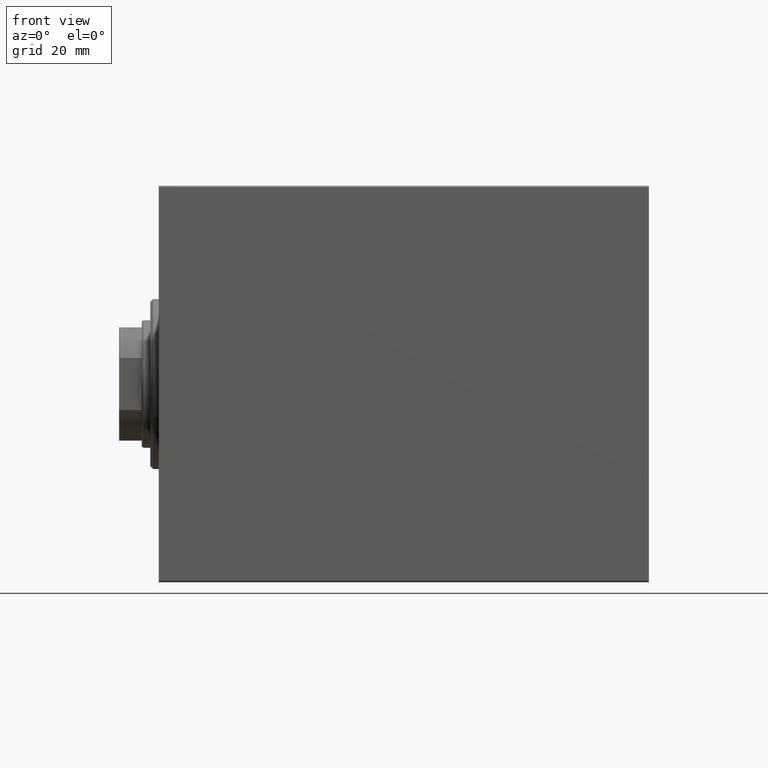
[diagram: clean part render]
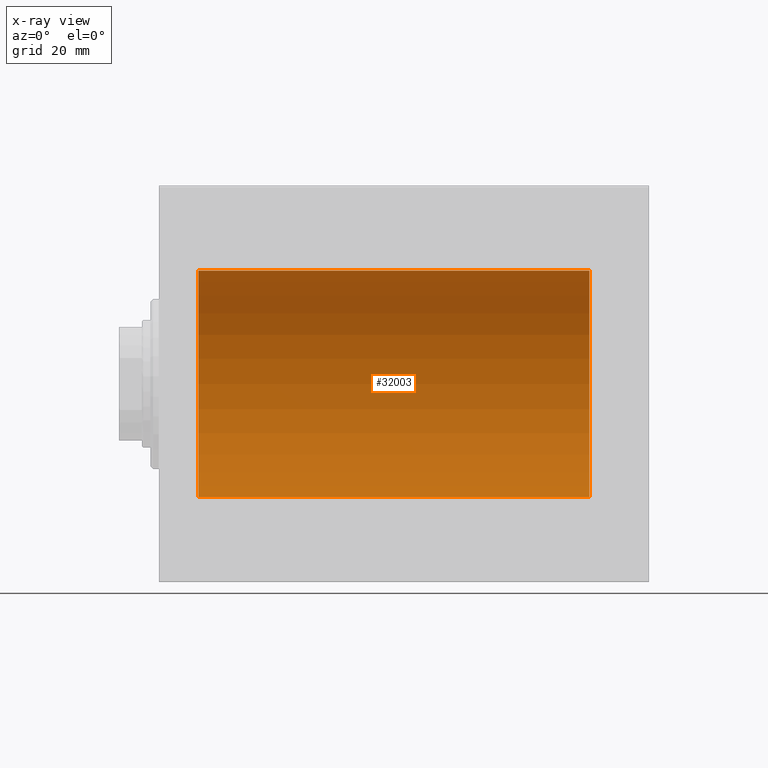
[diagram: x-ray — body ghosted, one internal face saturated and labeled with its STEP entity id]
A machine part, front view, then the same camera in x-ray: the body is ghosted and one INTERNAL B-rep face — a face not visible from any outside direction — is saturated and labeled: STEP entity #32003.
In plain terms, the highlighted cylindrical surface (partial cylindrical patch) has radius 40 mm, axis along (-1, -0, -0).
Its self-contained STEP definition (entity closure, byte-faithful):
#1011 = CARTESIAN_POINT ( 'NONE',  ( 148.5042935686005592, 2.602941461497646713, -39.91536715259250911 ) ) ;
#1141 = B_SPLINE_CURVE_WITH_KNOTS ( 'NONE', 3,
 ( #21067, #7482, #8143, #24404, #38185, #21723, #21504, #34628, #7711, #27752, #17745, #4361, #35286, #18173, #27967, #18396, #31299, #41517, #17527, #41736, #38402, #17957, #1011, #14620, #11285, #31733, #41954, #24843, #25285, #35067, #31961, #4580, #28405, #25064 ),
 .UNSPECIFIED., .F., .F.,
 ( 4, 2, 2, 2, 2, 2, 2, 2, 2, 2, 2, 2, 2, 2, 2, 2, 4 ),
 ( 2.203917256251973750E-18, 0.0005864162728940708162, 0.001172832545788139464, 0.001759248818682208112, 0.002345665091576277193, 0.002932081364470346275, 0.003518497637364414923, 0.004104913910258484004, 0.004691330183152552652, 0.005277746456046621300, 0.005864162728940689948, 0.006450579001834758595, 0.007036995274728826376, 0.007623411547622895024, 0.008209827820516962804, 0.008796244093411032319, 0.009382660366305101834 ),
 .UNSPECIFIED. ) ;
#1346 = DIRECTION ( 'NONE',  ( -1.000000000000000000, -0.000000000000000000, -0.000000000000000000 ) ) ;
#2346 = DIRECTION ( 'NONE',  ( -1.000000000000000000, -0.000000000000000000, -0.000000000000000000 ) ) ;
#2533 = ORIENTED_EDGE ( 'NONE', *, *, #23059, .F. ) ;
#2819 = CARTESIAN_POINT ( 'NONE',  ( 34.16846266449255154, 2.384195078505205512, -39.92903310064217948 ) ) ;
#4361 = CARTESIAN_POINT ( 'NONE',  ( 145.4964356991661134, 2.603499486649421879, -39.91533365697404889 ) ) ;
#4580 = CARTESIAN_POINT ( 'NONE',  ( 149.9803741230966807, 0.3947312521144693553, -39.99851454786935534 ) ) ;
#5350 = LINE ( 'NONE', #39387, #11723 ) ;
#5514 = CARTESIAN_POINT ( 'NONE',  ( 33.30408795818954104, 1.330687358699887968, -39.97827280031936681 ) ) ;
#5728 = CARTESIAN_POINT ( 'NONE',  ( 38.26098393863168923, 1.981711254113870613, -39.95112616827061913 ) ) ;
#6340 = VERTEX_POINT ( 'NONE', #6916 ) ;
#6372 = CARTESIAN_POINT ( 'NONE',  ( 38.69635323069529420, 1.329803094607265201, -39.97830262548650637 ) ) ;
#6916 = CARTESIAN_POINT ( 'NONE',  ( 144.0000000000000284, 2.642090954555614270E-16, -40.00000000000000000 ) ) ;
#7482 = CARTESIAN_POINT ( 'NONE',  ( 144.0000000000000568, 0.1982918730505173199, -40.00000000000000000 ) ) ;
#7711 = CARTESIAN_POINT ( 'NONE',  ( 144.7407048734210093, 1.983397227149396036, -39.95103655448513535 ) ) ;
#7827 = CARTESIAN_POINT ( 'NONE',  ( 13.99999999999998401, 0.000000000000000000, 0.000000000000000000 ) ) ;
#8038 = CARTESIAN_POINT ( 'NONE',  ( 152.0000000000000000, 0.000000000000000000, 0.000000000000000000 ) ) ;
#8143 = CARTESIAN_POINT ( 'NONE',  ( 144.0194663043102423, 0.3932559001416424116, -39.99852666141217128 ) ) ;
#8794 = VERTEX_POINT ( 'NONE', #15958 ) ;
#9153 = CARTESIAN_POINT ( 'NONE',  ( 152.0000000000000000, 0.000000000000000000, 0.000000000000000000 ) ) ;
#9300 = CARTESIAN_POINT ( 'NONE',  ( 39.00000000000000000, 4.898587181754971267E-15, -40.00000000000000000 ) ) ;
#9516 = CARTESIAN_POINT ( 'NONE',  ( 39.00000000000000000, 0.1958295874890065291, -40.00000000000000711 ) ) ;
#9728 = CARTESIAN_POINT ( 'NONE',  ( 37.82931819589460076, 2.385749008316991215, -39.92893738690724348 ) ) ;
#9951 = CARTESIAN_POINT ( 'NONE',  ( 33.01946630431021390, 0.3932559001416509048, -39.99852666141217838 ) ) ;
#10115 = EDGE_CURVE ( 'NONE', #22767, #15839, #16836, .T. ) ;
#10730 = FACE_OUTER_BOUND ( 'NONE', #26123, .T. ) ;
#11285 = CARTESIAN_POINT ( 'NONE',  ( 148.9808298560388948, 2.261756164323876384, -39.93625070860935722 ) ) ;
#11430 = CARTESIAN_POINT ( 'NONE',  ( 152.0000000000000000, 4.898587196589413026E-15, -40.00000000000000000 ) ) ;
#11723 = VECTOR ( 'NONE', #28731, 1000.000000000000000 ) ;
#11769 = EDGE_CURVE ( 'NONE', #32143, #23096, #41003, .T. ) ;
#12262 = VERTEX_POINT ( 'NONE', #23778 ) ;
#12648 = CARTESIAN_POINT ( 'NONE',  ( 33.09572628814569129, 0.7768046863726183471, -39.99291636985139320 ) ) ;
#12864 = CARTESIAN_POINT ( 'NONE',  ( 35.22113368114476373, 2.903851887155405986, -39.89447500423337800 ) ) ;
#13076 = CARTESIAN_POINT ( 'NONE',  ( 34.49643569916604946, 2.603499486649436090, -39.91533365697402758 ) ) ;
#13232 = AXIS2_PLACEMENT_3D ( 'NONE', #9153, #16708, #16057 ) ;
#14605 = CARTESIAN_POINT ( 'NONE',  ( 152.0000000000000000, 0.000000000000000000, 40.00000000000000000 ) ) ;
#14620 = CARTESIAN_POINT ( 'NONE',  ( 148.8293181958946150, 2.385749008316984998, -39.92893738690724348 ) ) ;
#15839 = VERTEX_POINT ( 'NONE', #37205 ) ;
#15958 = CARTESIAN_POINT ( 'NONE',  ( 13.99999999999998401, 4.898587196589413026E-15, -40.00000000000000000 ) ) ;
#16057 = DIRECTION ( 'NONE',  ( 0.000000000000000000, 0.000000000000000000, 1.000000000000000000 ) ) ;
#16297 = VECTOR ( 'NONE', #30412, 1000.000000000000000 ) ;
#16419 = CARTESIAN_POINT ( 'NONE',  ( 36.19466961372759073, 3.000070108558761994, -39.88733607736547526 ) ) ;
#16708 = DIRECTION ( 'NONE',  ( -1.000000000000000000, 0.000000000000000000, 0.000000000000000000 ) ) ;
#16836 = LINE ( 'NONE', #30627, #16297 ) ;
#17142 = ORIENTED_EDGE ( 'NONE', *, *, #40040, .T. ) ;
#17218 = VECTOR ( 'NONE', #34123, 1000.000000000000000 ) ;
#17236 = LINE ( 'NONE', #11430, #17218 ) ;
#17267 = VERTEX_POINT ( 'NONE', #34665 ) ;
#17527 = CARTESIAN_POINT ( 'NONE',  ( 147.3935020639295033, 2.980544951704983792, -39.88881833341081062 ) ) ;
#17745 = CARTESIAN_POINT ( 'NONE',  ( 145.1684626644925515, 2.384195078505191745, -39.92903310064217237 ) ) ;
#17957 = CARTESIAN_POINT ( 'NONE',  ( 148.3286925611234324, 2.696891635062796500, -39.90905226542625428 ) ) ;
#18009 = CARTESIAN_POINT ( 'NONE',  ( 32.99999999999999289, 8.398598542115384856E-15, -40.00000000000000000 ) ) ;
#18173 = CARTESIAN_POINT ( 'NONE',  ( 146.0319915523671455, 2.846249845702965242, -39.89867772821342129 ) ) ;
#18365 = ORIENTED_EDGE ( 'NONE', *, *, #35515, .T. ) ;
#18396 = CARTESIAN_POINT ( 'NONE',  ( 146.6084575790990527, 2.980886287300809734, -39.88879301994634119 ) ) ;
#19281 = CARTESIAN_POINT ( 'NONE',  ( 152.0000000000000000, 4.898587196589413026E-15, -40.00000000000000000 ) ) ;
#19534 = CARTESIAN_POINT ( 'NONE',  ( 37.32869256112343237, 2.696891635062812487, -39.90905226542624717 ) ) ;
#20315 = AXIS2_PLACEMENT_3D ( 'NONE', #7827, #20535, #27214 ) ;
#20388 = EDGE_CURVE ( 'NONE', #32143, #8794, #23257, .T. ) ;
#20535 = DIRECTION ( 'NONE',  ( -1.000000000000000000, 0.000000000000000000, 0.000000000000000000 ) ) ;
#21067 = CARTESIAN_POINT ( 'NONE',  ( 144.0000000000000284, 2.642090954555614270E-16, -40.00000000000000000 ) ) ;
#21394 = DIRECTION ( 'NONE',  ( 0.000000000000000000, 0.000000000000000000, 1.000000000000000000 ) ) ;
#21504 = CARTESIAN_POINT ( 'NONE',  ( 144.3962588482174851, 1.502986292339231644, -39.97208601512195969 ) ) ;
#21723 = CARTESIAN_POINT ( 'NONE',  ( 144.3040879581895979, 1.330687358699877310, -39.97827280031937391 ) ) ;
#22649 = CARTESIAN_POINT ( 'NONE',  ( 38.60242138097658682, 1.505187563392005323, -39.97200074276641857 ) ) ;
#22767 = VERTEX_POINT ( 'NONE', #14605 ) ;
#23059 = EDGE_CURVE ( 'NONE', #6340, #23096, #17236, .T. ) ;
#23078 = CARTESIAN_POINT ( 'NONE',  ( 35.03199155236713835, 2.846249845702978565, -39.89867772821342129 ) ) ;
#23096 = VERTEX_POINT ( 'NONE', #31446 ) ;
#23257 = LINE ( 'NONE', #19281, #36316 ) ;
#23294 = CARTESIAN_POINT ( 'NONE',  ( 33.61400897252563880, 1.829066045078060476, -39.95849278436324425 ) ) ;
#23778 = CARTESIAN_POINT ( 'NONE',  ( 150.0000000000000284, 4.898587181765620889E-15, -40.00000000000000000 ) ) ;
#24302 = CYLINDRICAL_SURFACE ( 'NONE', #28778, 40.00000000000000000 ) ;
#24404 = CARTESIAN_POINT ( 'NONE',  ( 144.0957262881456984, 0.7768046863726094653, -39.99291636985139320 ) ) ;
#24843 = CARTESIAN_POINT ( 'NONE',  ( 149.6024213809766081, 1.505187563392005323, -39.97200074276641146 ) ) ;
#25064 = CARTESIAN_POINT ( 'NONE',  ( 150.0000000000000284, 4.898587181765620889E-15, -40.00000000000000000 ) ) ;
#25285 = CARTESIAN_POINT ( 'NONE',  ( 149.6963532306953368, 1.329803094607256986, -39.97830262548651348 ) ) ;
#25993 = CARTESIAN_POINT ( 'NONE',  ( 36.96538297760252334, 2.847223932150720671, -39.89860891179020541 ) ) ;
#26123 = EDGE_LOOP ( 'NONE', ( #30708, #32245, #34238, #18365, #28250, #28610, #2533, #17142 ) ) ;
#26218 = CARTESIAN_POINT ( 'NONE',  ( 36.77833358861975199, 2.903909245874810363, -39.89447063612582411 ) ) ;
#26434 = CARTESIAN_POINT ( 'NONE',  ( 35.80317550223061573, 2.999929504480807196, -39.88734665245503663 ) ) ;
#26643 = CARTESIAN_POINT ( 'NONE',  ( 38.90364495387748889, 0.7792872749133341603, -39.99287049138470707 ) ) ;
#27214 = DIRECTION ( 'NONE',  ( 0.000000000000000000, 0.000000000000000000, 1.000000000000000000 ) ) ;
#27752 = CARTESIAN_POINT ( 'NONE',  ( 145.0174478800970519, 2.260036752248971492, -39.93634209860680073 ) ) ;
#27967 = CARTESIAN_POINT ( 'NONE',  ( 146.2211336811448348, 2.903851887155393108, -39.89447500423338511 ) ) ;
#28250 = ORIENTED_EDGE ( 'NONE', *, *, #20388, .F. ) ;
#28405 = CARTESIAN_POINT ( 'NONE',  ( 150.0000000000000284, 0.1958295874890079447, -39.99999999999999289 ) ) ;
#28610 = ORIENTED_EDGE ( 'NONE', *, *, #11769, .T. ) ;
#28731 = DIRECTION ( 'NONE',  ( -1.000000000000000000, -0.000000000000000000, -0.000000000000000000 ) ) ;
#28778 = AXIS2_PLACEMENT_3D ( 'NONE', #8038, #1346, #21394 ) ;
#29551 = CARTESIAN_POINT ( 'NONE',  ( 36.39350206392951037, 2.980544951704998002, -39.88881833341080352 ) ) ;
#29984 = CARTESIAN_POINT ( 'NONE',  ( 37.50429356860058761, 2.602941461497656039, -39.91536715259250911 ) ) ;
#30203 = CARTESIAN_POINT ( 'NONE',  ( 33.74070487342093827, 1.983397227149410025, -39.95103655448513535 ) ) ;
#30412 = DIRECTION ( 'NONE',  ( -1.000000000000000000, -0.000000000000000000, -0.000000000000000000 ) ) ;
#30627 = CARTESIAN_POINT ( 'NONE',  ( 152.0000000000000000, 0.000000000000000000, 40.00000000000000000 ) ) ;
#30708 = ORIENTED_EDGE ( 'NONE', *, *, #32153, .F. ) ;
#30995 = CIRCLE ( 'NONE', #20315, 40.00000000000000000 ) ;
#31299 = CARTESIAN_POINT ( 'NONE',  ( 146.8031755022305731, 2.999929504480790321, -39.88734665245503663 ) ) ;
#31446 = CARTESIAN_POINT ( 'NONE',  ( 39.00000000000000000, 4.898587181754971267E-15, -40.00000000000000000 ) ) ;
#31568 = CARTESIAN_POINT ( 'NONE',  ( 32.99999999999998579, 0.1982918730505277005, -39.99999999999999289 ) ) ;
#31733 = CARTESIAN_POINT ( 'NONE',  ( 149.2609839386317105, 1.981711254113862841, -39.95112616827061203 ) ) ;
#31961 = CARTESIAN_POINT ( 'NONE',  ( 149.9036449538775173, 0.7792872749133293864, -39.99287049138470707 ) ) ;
#32003 = ADVANCED_FACE ( 'NONE', ( #10730 ), #24302, .F. ) ;
#32143 = VERTEX_POINT ( 'NONE', #35833 ) ;
#32153 = EDGE_CURVE ( 'NONE', #17267, #12262, #5350, .T. ) ;
#32245 = ORIENTED_EDGE ( 'NONE', *, *, #35721, .F. ) ;
#34123 = DIRECTION ( 'NONE',  ( -1.000000000000000000, -0.000000000000000000, -0.000000000000000000 ) ) ;
#34238 = ORIENTED_EDGE ( 'NONE', *, *, #10115, .T. ) ;
#34628 = CARTESIAN_POINT ( 'NONE',  ( 144.6140089725256814, 1.829066045078048930, -39.95849278436325136 ) ) ;
#34665 = CARTESIAN_POINT ( 'NONE',  ( 152.0000000000000000, 4.898587196589413026E-15, -40.00000000000000000 ) ) ;
#35067 = CARTESIAN_POINT ( 'NONE',  ( 149.8469143336090212, 0.9663207501652061326, -39.98873943115997065 ) ) ;
#35286 = CARTESIAN_POINT ( 'NONE',  ( 145.6709769446328266, 2.696641662727008448, -39.90906847305313221 ) ) ;
#35515 = EDGE_CURVE ( 'NONE', #15839, #8794, #30995, .T. ) ;
#35721 = EDGE_CURVE ( 'NONE', #22767, #17267, #43043, .T. ) ;
#35833 = CARTESIAN_POINT ( 'NONE',  ( 32.99999999999999289, 8.398598542115384856E-15, -40.00000000000000000 ) ) ;
#36316 = VECTOR ( 'NONE', #2346, 1000.000000000000000 ) ;
#36432 = CARTESIAN_POINT ( 'NONE',  ( 33.39625884821743540, 1.502986292339240970, -39.97208601512195258 ) ) ;
#36863 = CARTESIAN_POINT ( 'NONE',  ( 35.60845757909898879, 2.980886287300823945, -39.88879301994635540 ) ) ;
#37205 = CARTESIAN_POINT ( 'NONE',  ( 13.99999999999998401, 0.000000000000000000, 40.00000000000000000 ) ) ;
#38185 = CARTESIAN_POINT ( 'NONE',  ( 144.1534507543327095, 0.9673820216299533481, -39.98871336974455204 ) ) ;
#38402 = CARTESIAN_POINT ( 'NONE',  ( 147.9653829776025589, 2.847223932150704240, -39.89860891179019120 ) ) ;
#39387 = CARTESIAN_POINT ( 'NONE',  ( 152.0000000000000000, 4.898587196589413026E-15, -40.00000000000000000 ) ) ;
#39546 = CARTESIAN_POINT ( 'NONE',  ( 38.84691433360895019, 0.9663207501652123499, -39.98873943115997776 ) ) ;
#39771 = CARTESIAN_POINT ( 'NONE',  ( 38.98037412309665228, 0.3947312521144721309, -39.99851454786933402 ) ) ;
#39989 = CARTESIAN_POINT ( 'NONE',  ( 37.98082985603886641, 2.261756164323886154, -39.93625070860936432 ) ) ;
#40040 = EDGE_CURVE ( 'NONE', #6340, #12262, #1141, .T. ) ;
#40195 = CARTESIAN_POINT ( 'NONE',  ( 38.38516937969400544, 1.830069308885378776, -39.95844440547435283 ) ) ;
#41003 = B_SPLINE_CURVE_WITH_KNOTS ( 'NONE', 3,
 ( #18009, #31568, #9951, #12648, #43531, #5514, #36432, #23294, #30203, #43317, #2819, #13076, #43098, #23078, #12864, #36863, #26434, #16419, #29551, #26218, #25993, #19534, #29984, #9728, #39989, #5728, #40195, #22649, #6372, #39546, #26643, #39771, #9516, #9300 ),
 .UNSPECIFIED., .F., .F.,
 ( 4, 2, 2, 2, 2, 2, 2, 2, 2, 2, 2, 2, 2, 2, 2, 2, 4 ),
 ( 3.904922793221654316E-19, 0.0005864162728940700573, 0.001172832545788139681, 0.001759248818682208762, 0.002345665091576278061, 0.002932081364470347576, 0.003518497637364417091, 0.004104913910258486606, 0.004691330183152556121, 0.005277746456046625637, 0.005864162728940695152, 0.006450579001834764667, 0.007036995274728834182, 0.007623411547622903697, 0.008209827820516973212, 0.008796244093411044462, 0.009382660366305113978 ),
 .UNSPECIFIED. ) ;
#41517 = CARTESIAN_POINT ( 'NONE',  ( 147.1946696137275978, 3.000070108558746007, -39.88733607736548237 ) ) ;
#41736 = CARTESIAN_POINT ( 'NONE',  ( 147.7783335886197733, 2.903909245874797485, -39.89447063612583122 ) ) ;
#41954 = CARTESIAN_POINT ( 'NONE',  ( 149.3851693796940481, 1.830069308885375223, -39.95844440547435994 ) ) ;
#43043 = CIRCLE ( 'NONE', #13232, 40.00000000000000000 ) ;
#43098 = CARTESIAN_POINT ( 'NONE',  ( 34.67097694463277691, 2.696641662727018662, -39.90906847305313221 ) ) ;
#43317 = CARTESIAN_POINT ( 'NONE',  ( 34.01744788009703058, 2.260036752248987479, -39.93634209860680073 ) ) ;
#43531 = CARTESIAN_POINT ( 'NONE',  ( 33.15345075433262423, 0.9673820216299632291, -39.98871336974453072 ) ) ;